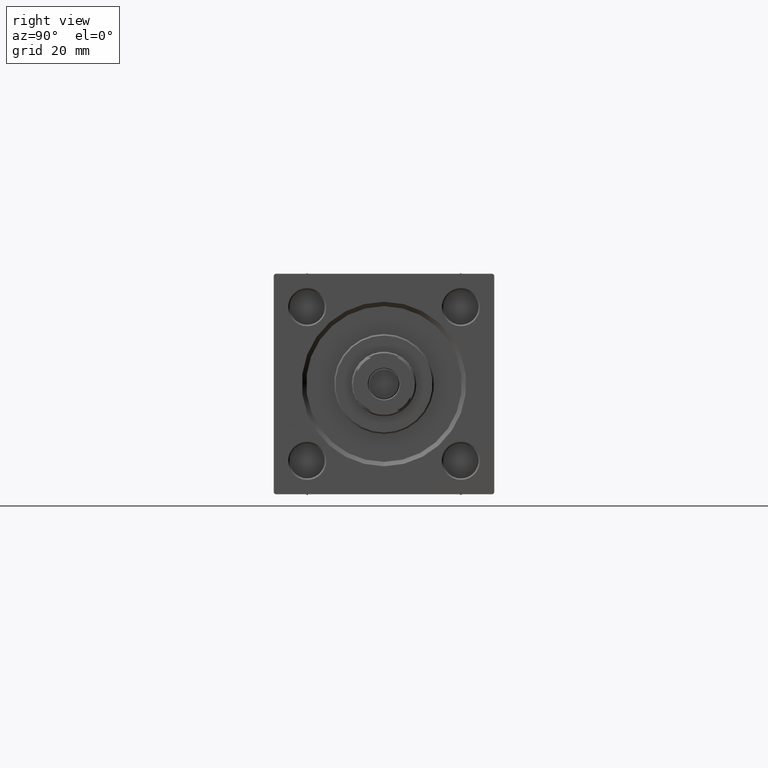
[diagram: clean part render]
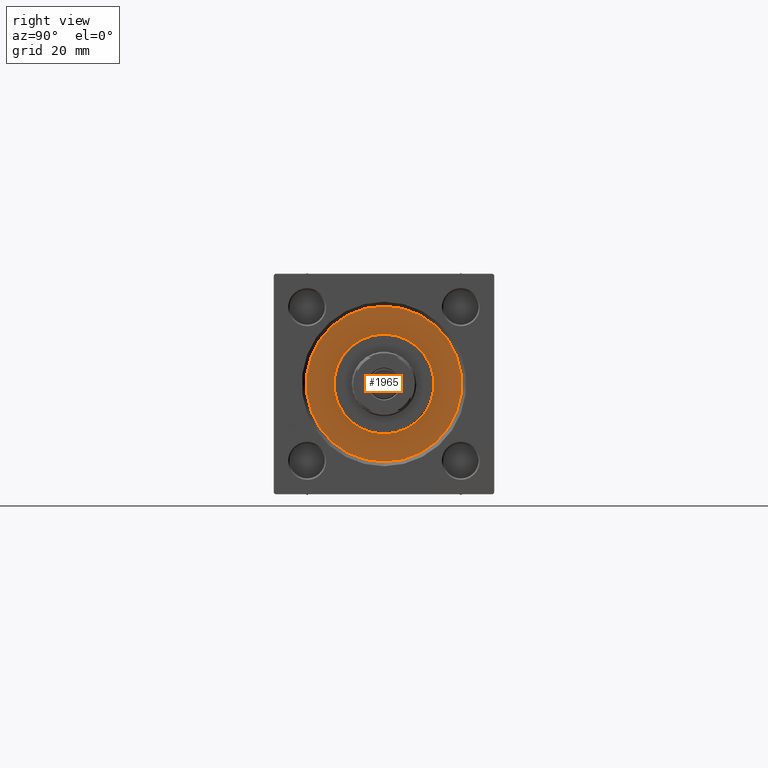
[diagram: same view with one face highlighted and labeled with its STEP entity id]
A machine part, right view. The second image highlights one B-rep face of the part: STEP entity #1965.
In plain terms, the highlighted planar face has unit normal (1, 0, 0).
Its self-contained STEP definition (entity closure, byte-faithful):
#1965 = ADVANCED_FACE ( 'NONE', ( #10561, #26403 ), #26651, .T. ) ;
#3112 = CIRCLE ( 'NONE', #6461, 17.00000000000000000 ) ;
#3496 = VERTEX_POINT ( 'NONE', #27411 ) ;
#3604 = DIRECTION ( 'NONE',  ( 0.000000000000000000, 0.000000000000000000, 1.000000000000000000 ) ) ;
#6202 = VERTEX_POINT ( 'NONE', #31192 ) ;
#6253 = CARTESIAN_POINT ( 'NONE',  ( -17.00000000000000000, 0.000000000000000000, 28.69999999999999929 ) ) ;
#6461 = AXIS2_PLACEMENT_3D ( 'NONE', #46981, #3604, #27242 ) ;
#7171 = VERTEX_POINT ( 'NONE', #29367 ) ;
#10561 = FACE_BOUND ( 'NONE', #17694, .T. ) ;
#10575 = CARTESIAN_POINT ( 'NONE',  ( 0.000000000000000000, 0.000000000000000000, 28.69999999999999929 ) ) ;
#10826 = DIRECTION ( 'NONE',  ( 1.000000000000000000, 0.000000000000000000, 0.000000000000000000 ) ) ;
#13754 = EDGE_CURVE ( 'NONE', #3496, #7171, #42178, .T. ) ;
#16851 = CIRCLE ( 'NONE', #23479, 17.00000000000000000 ) ;
#17694 = EDGE_LOOP ( 'NONE', ( #43538, #49990 ) ) ;
#18270 = CIRCLE ( 'NONE', #19113, 26.50000000000000355 ) ;
#19113 = AXIS2_PLACEMENT_3D ( 'NONE', #22748, #38586, #33698 ) ;
#19415 = ORIENTED_EDGE ( 'NONE', *, *, #13754, .T. ) ;
#22516 = DIRECTION ( 'NONE',  ( 0.000000000000000000, 0.000000000000000000, 1.000000000000000000 ) ) ;
#22748 = CARTESIAN_POINT ( 'NONE',  ( 0.000000000000000000, 0.000000000000000000, 28.69999999999999929 ) ) ;
#23479 = AXIS2_PLACEMENT_3D ( 'NONE', #10575, #26167, #10826 ) ;
#23883 = EDGE_CURVE ( 'NONE', #6202, #26933, #16851, .T. ) ;
#25157 = AXIS2_PLACEMENT_3D ( 'NONE', #37597, #22516, #34455 ) ;
#26167 = DIRECTION ( 'NONE',  ( 0.000000000000000000, 0.000000000000000000, 1.000000000000000000 ) ) ;
#26403 = FACE_OUTER_BOUND ( 'NONE', #34801, .T. ) ;
#26651 = PLANE ( 'NONE',  #25157 ) ;
#26933 = VERTEX_POINT ( 'NONE', #6253 ) ;
#27242 = DIRECTION ( 'NONE',  ( 1.000000000000000000, 0.000000000000000000, 0.000000000000000000 ) ) ;
#27411 = CARTESIAN_POINT ( 'NONE',  ( 26.50000000000000355, 3.245314017740486554E-15, 28.69999999999999929 ) ) ;
#29367 = CARTESIAN_POINT ( 'NONE',  ( -26.50000000000000355, 0.000000000000000000, 28.69999999999999929 ) ) ;
#31192 = CARTESIAN_POINT ( 'NONE',  ( 17.00000000000000000, 2.081899558550500280E-15, 28.69999999999999929 ) ) ;
#33698 = DIRECTION ( 'NONE',  ( 1.000000000000000000, 0.000000000000000000, 0.000000000000000000 ) ) ;
#34455 = DIRECTION ( 'NONE',  ( 1.000000000000000000, 0.000000000000000000, -0.000000000000000000 ) ) ;
#34801 = EDGE_LOOP ( 'NONE', ( #45362, #19415 ) ) ;
#35740 = CARTESIAN_POINT ( 'NONE',  ( 0.000000000000000000, 0.000000000000000000, 28.69999999999999929 ) ) ;
#36354 = AXIS2_PLACEMENT_3D ( 'NONE', #35740, #39109, #46637 ) ;
#37597 = CARTESIAN_POINT ( 'NONE',  ( 0.000000000000000000, 0.000000000000000000, 28.69999999999999929 ) ) ;
#38586 = DIRECTION ( 'NONE',  ( 0.000000000000000000, 0.000000000000000000, 1.000000000000000000 ) ) ;
#39109 = DIRECTION ( 'NONE',  ( 0.000000000000000000, 0.000000000000000000, 1.000000000000000000 ) ) ;
#42178 = CIRCLE ( 'NONE', #36354, 26.50000000000000355 ) ;
#42583 = EDGE_CURVE ( 'NONE', #7171, #3496, #18270, .T. ) ;
#43538 = ORIENTED_EDGE ( 'NONE', *, *, #46101, .F. ) ;
#45362 = ORIENTED_EDGE ( 'NONE', *, *, #42583, .T. ) ;
#46101 = EDGE_CURVE ( 'NONE', #26933, #6202, #3112, .T. ) ;
#46637 = DIRECTION ( 'NONE',  ( 1.000000000000000000, 0.000000000000000000, 0.000000000000000000 ) ) ;
#46981 = CARTESIAN_POINT ( 'NONE',  ( 0.000000000000000000, 0.000000000000000000, 28.69999999999999929 ) ) ;
#49990 = ORIENTED_EDGE ( 'NONE', *, *, #23883, .F. ) ;